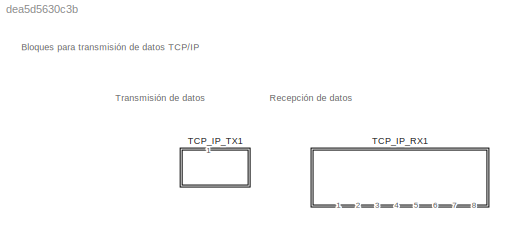
MODEL slx_dea5d5630c3b
KIND library
CONFIG AbsTol = auto
CONFIG EnableMultiTasking = off
CONFIG FixedStep = auto
CONFIG MaxStep = auto
CONFIG MinStep = auto
CONFIG RelTol = 1e-3
CONFIG SampleTimeConstraint = Unconstrained
CONFIG Solver = VariableStepAuto
CONFIG SolverName = VariableStepAuto
CONFIG StartTime = 0.0
CONFIG StopTime = 10.0
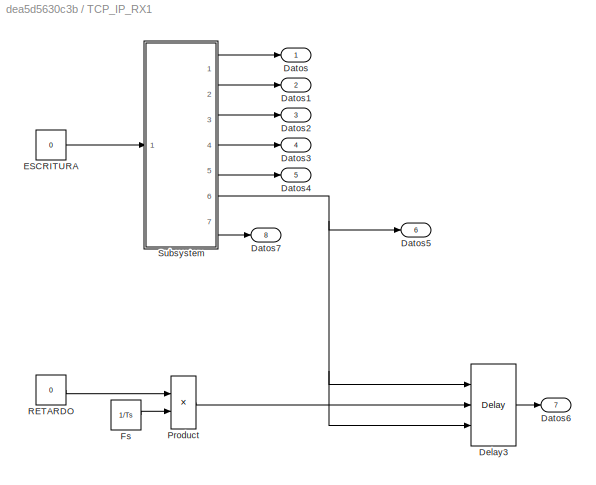
BLOCK [SubSystem] TCP_IP_RX1
  Ports = [0, 8]
  RequestExecContextInheritance = off
  ShowPortLabels = none
BLOCK [Outport] TCP_IP_RX1/Datos
  IconDisplay = Port number
BLOCK [Outport] TCP_IP_RX1/Datos1
  IconDisplay = Port number
  Port = 2
BLOCK [Outport] TCP_IP_RX1/Datos2
  IconDisplay = Port number
  Port = 3
BLOCK [Outport] TCP_IP_RX1/Datos3
  IconDisplay = Port number
  Port = 4
BLOCK [Outport] TCP_IP_RX1/Datos4
  IconDisplay = Port number
  Port = 5
BLOCK [Outport] TCP_IP_RX1/Datos5
  IconDisplay = Port number
  Port = 6
BLOCK [Outport] TCP_IP_RX1/Datos6
  IconDisplay = Port number
  Port = 7
BLOCK [Outport] TCP_IP_RX1/Datos7
  IconDisplay = Port number
  Port = 8
BLOCK [Delay] TCP_IP_RX1/Delay3
  DelayLength = 1
  DelayLengthSource = Input port
  DelayLengthUpperLimit = 1000
  InitialCondition = 0
  InitialConditionSource = Input port
  InputPortMap = u0,p1,p4
  InputProcessing = Inherited
  Ports = [3, 1]
BLOCK [Constant] TCP_IP_RX1/ESCRITURA
  Value = 0
BLOCK [Constant] TCP_IP_RX1/Fs
  Value = 1/Ts
BLOCK [Product] TCP_IP_RX1/Product
  InputSameDT = off
  OutDataTypeStr = Inherit: Inherit via internal rule
  Ports = [2, 1]
  RndMeth = Floor
  SaturateOnIntegerOverflow = off
BLOCK [Constant] TCP_IP_RX1/RETARDO
  Value = 0
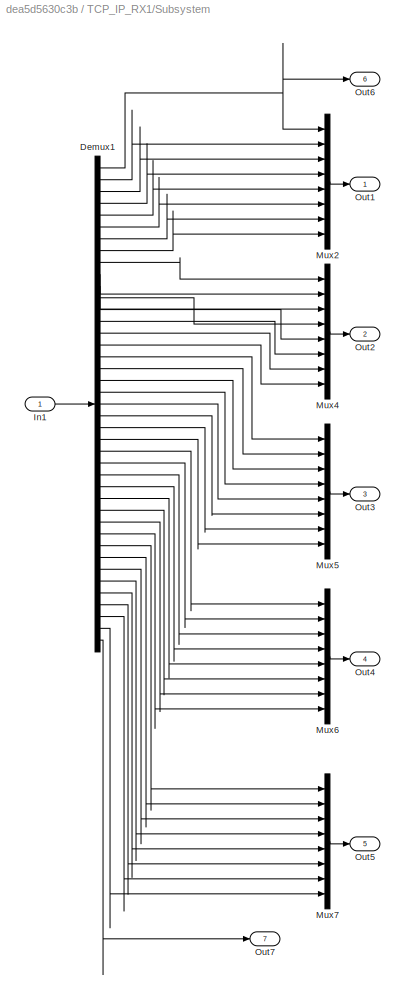
BLOCK [SubSystem] TCP_IP_RX1/Subsystem
  Ports = [1, 7]
  RequestExecContextInheritance = off
BLOCK [Demux] TCP_IP_RX1/Subsystem/Demux1
  DisplayOption = bar
  Outputs = 41
  Ports = [1, 41]
BLOCK [Inport] TCP_IP_RX1/Subsystem/In1
  IconDisplay = Port number
BLOCK [Mux] TCP_IP_RX1/Subsystem/Mux2
  DisplayOption = bar
  Inputs = 8
  Ports = [8, 1]
BLOCK [Mux] TCP_IP_RX1/Subsystem/Mux4
  DisplayOption = bar
  Inputs = 8
  Ports = [8, 1]
BLOCK [Mux] TCP_IP_RX1/Subsystem/Mux5
  DisplayOption = bar
  Inputs = 8
  Ports = [8, 1]
BLOCK [Mux] TCP_IP_RX1/Subsystem/Mux6
  DisplayOption = bar
  Inputs = 8
  Ports = [8, 1]
BLOCK [Mux] TCP_IP_RX1/Subsystem/Mux7
  DisplayOption = bar
  Inputs = 8
  Ports = [8, 1]
BLOCK [Outport] TCP_IP_RX1/Subsystem/Out1
  IconDisplay = Port number
BLOCK [Outport] TCP_IP_RX1/Subsystem/Out2
  IconDisplay = Port number
  Port = 2
BLOCK [Outport] TCP_IP_RX1/Subsystem/Out3
  IconDisplay = Port number
  Port = 3
BLOCK [Outport] TCP_IP_RX1/Subsystem/Out4
  IconDisplay = Port number
  Port = 4
BLOCK [Outport] TCP_IP_RX1/Subsystem/Out5
  IconDisplay = Port number
  Port = 5
BLOCK [Outport] TCP_IP_RX1/Subsystem/Out6
  IconDisplay = Port number
  Port = 6
BLOCK [Outport] TCP_IP_RX1/Subsystem/Out7
  IconDisplay = Port number
  Port = 7
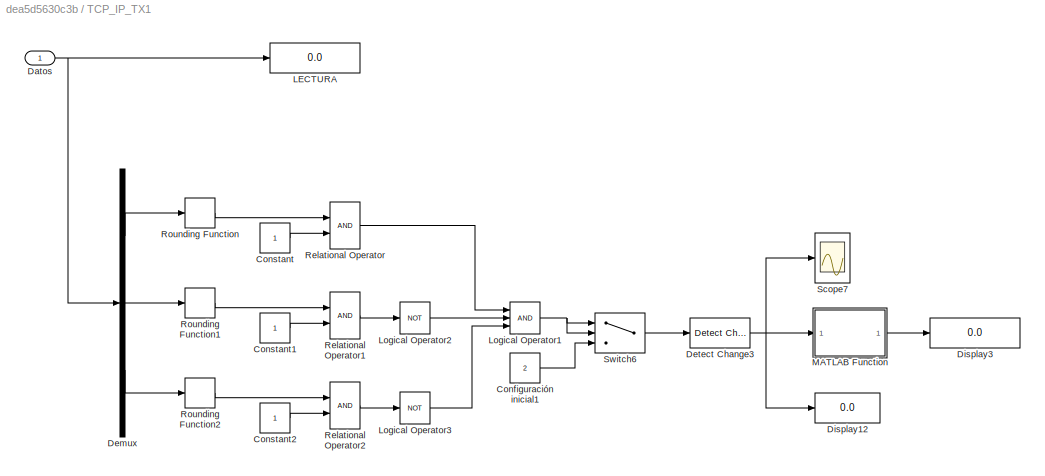
BLOCK [SubSystem] TCP_IP_TX1
  Ports = [1]
  RequestExecContextInheritance = off
  ShowPortLabels = none
BLOCK [Constant] TCP_IP_TX1/Configuración inicial1
  Value = 2
BLOCK [Constant] TCP_IP_TX1/Constant
BLOCK [Constant] TCP_IP_TX1/Constant1
BLOCK [Constant] TCP_IP_TX1/Constant2
BLOCK [Inport] TCP_IP_TX1/Datos
  IconDisplay = Port number
BLOCK [Demux] TCP_IP_TX1/Demux
  DisplayOption = bar
  Outputs = 3
  Ports = [1, 3]
BLOCK [Reference] TCP_IP_TX1/Detect Change3  REF=simulink/Logic and Bit
Operations/Detect
Change
  Ports = [1, 1]
  SourceBlock = simulink/Logic and Bit\nOperations/Detect\nChange
  SourceProductBaseCode = SL
  SourceProductName = Simulink
  SourceType = Detect Change
BLOCK [Display] TCP_IP_TX1/Display12
  Decimation = 1
  Ports = [1]
BLOCK [Display] TCP_IP_TX1/Display3
  Decimation = 1
  Ports = [1]
BLOCK [Display] TCP_IP_TX1/LECTURA
  Decimation = 1
  Ports = [1]
BLOCK [Logic] TCP_IP_TX1/Logical Operator1
  AllPortsSameDT = off
  Inputs = 3
  OutDataTypeStr = boolean
  Ports = [3, 1]
BLOCK [Logic] TCP_IP_TX1/Logical Operator2
  AllPortsSameDT = off
  Inputs = 3
  Operator = NOT
  OutDataTypeStr = boolean
  Ports = [1, 1]
BLOCK [Logic] TCP_IP_TX1/Logical Operator3
  AllPortsSameDT = off
  Inputs = 3
  Operator = NOT
  OutDataTypeStr = boolean
  Ports = [1, 1]
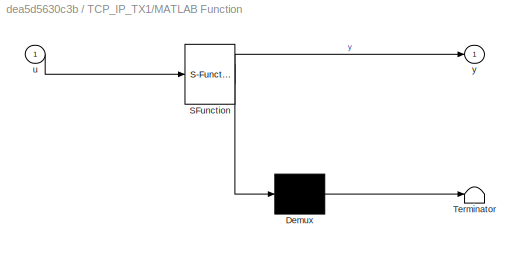
BLOCK [SubSystem] TCP_IP_TX1/MATLAB Function
  ErrorFcn = Stateflow.Translate.translate
  PermitHierarchicalResolution = ExplicitOnly
  Ports = [1, 1]
  RequestExecContextInheritance = off
  SFBlockType = MATLAB Function
  TreatAsAtomicUnit = on
BLOCK [Demux] TCP_IP_TX1/MATLAB Function/ Demux 
  Outputs = 1
  Ports = [1, 1]
BLOCK [S-Function] TCP_IP_TX1/MATLAB Function/ SFunction 
  EnableBusSupport = on
  FunctionName = sf_sfun
  PortCounts = [1 2]
  Ports = [1, 2]
  SFcnIsStateOwnerBlock = off
  SFunctionDeploymentMode = off
  Tag = Stateflow S-Function libreria_comunicaciones_cliente1 2
BLOCK [Terminator] TCP_IP_TX1/MATLAB Function/ Terminator 
BLOCK [Inport] TCP_IP_TX1/MATLAB Function/u
  IconDisplay = Port number
BLOCK [Outport] TCP_IP_TX1/MATLAB Function/y
  IconDisplay = Port number
BLOCK [RelationalOperator] TCP_IP_TX1/Relational Operator
  InputSameDT = off
  OutDataTypeStr = boolean
  Ports = [2, 1]
  RndMeth = Simplest
BLOCK [RelationalOperator] TCP_IP_TX1/Relational Operator1
  InputSameDT = off
  OutDataTypeStr = boolean
  Ports = [2, 1]
  RndMeth = Simplest
BLOCK [RelationalOperator] TCP_IP_TX1/Relational Operator2
  InputSameDT = off
  OutDataTypeStr = boolean
  Ports = [2, 1]
  RndMeth = Simplest
BLOCK [Rounding] TCP_IP_TX1/Rounding Function
  Operator = fix
BLOCK [Rounding] TCP_IP_TX1/Rounding Function1
  Operator = fix
BLOCK [Rounding] TCP_IP_TX1/Rounding Function2
  Operator = fix
BLOCK [Scope] TCP_IP_TX1/Scope7
  Floating = off
  NumInputPorts = 1
  Ports = [1]
  ScopeSpecificationString = Simulink.scopes.TimeScopeBlockCfg('CurrentConfiguration', extmgr.ConfigurationSet(extmgr.Configuration('Core','General UI',true,'FigureColor',[1 1 1]),extmgr.Configuration('Core','Source UI',true),extmgr.Configuration('Sources','WiredSimulink',true,'DataLoggingVariableName','ScopeData1','DataLoggingLimitDataPoints',true,'DataLoggingMaxPoints','15361','DataLoggingDecimation','1'),extmgr.Configurati...<+2168ch>
BLOCK [Switch] TCP_IP_TX1/Switch6
  Criteria = u2 ~= 0
  InputSameDT = off
  SaturateOnIntegerOverflow = off
ANNOTATION (root): Recepción de datos
ANNOTATION (root): Transmisión de datos
ANNOTATION (root): Bloques para transmisión de datos TCP/IP
LINE TCP_IP_RX1/Delay3:1 -> TCP_IP_RX1/Datos6:1
LINE TCP_IP_RX1/ESCRITURA:1 -> TCP_IP_RX1/Subsystem:1
LINE TCP_IP_RX1/Fs:1 -> TCP_IP_RX1/Product:2
LINE TCP_IP_RX1/Product:1 -> TCP_IP_RX1/Delay3:2
LINE TCP_IP_RX1/RETARDO:1 -> TCP_IP_RX1/Product:1
NET TCP_IP_RX1/Subsystem/Demux1:1 -> TCP_IP_RX1/Subsystem/Mux2:1, TCP_IP_RX1/Subsystem/Out6:1
LINE TCP_IP_RX1/Subsystem/Demux1:10 -> TCP_IP_RX1/Subsystem/Mux4:2
LINE TCP_IP_RX1/Subsystem/Demux1:11 -> TCP_IP_RX1/Subsystem/Mux4:3
LINE TCP_IP_RX1/Subsystem/Demux1:12 -> TCP_IP_RX1/Subsystem/Mux4:4
LINE TCP_IP_RX1/Subsystem/Demux1:13 -> TCP_IP_RX1/Subsystem/Mux4:5
LINE TCP_IP_RX1/Subsystem/Demux1:14 -> TCP_IP_RX1/Subsystem/Mux4:6
LINE TCP_IP_RX1/Subsystem/Demux1:15 -> TCP_IP_RX1/Subsystem/Mux4:7
LINE TCP_IP_RX1/Subsystem/Demux1:16 -> TCP_IP_RX1/Subsystem/Mux4:8
LINE TCP_IP_RX1/Subsystem/Demux1:17 -> TCP_IP_RX1/Subsystem/Mux5:1
LINE TCP_IP_RX1/Subsystem/Demux1:18 -> TCP_IP_RX1/Subsystem/Mux5:2
LINE TCP_IP_RX1/Subsystem/Demux1:19 -> TCP_IP_RX1/Subsystem/Mux5:3
LINE TCP_IP_RX1/Subsystem/Demux1:2 -> TCP_IP_RX1/Subsystem/Mux2:2
LINE TCP_IP_RX1/Subsystem/Demux1:20 -> TCP_IP_RX1/Subsystem/Mux5:4
LINE TCP_IP_RX1/Subsystem/Demux1:21 -> TCP_IP_RX1/Subsystem/Mux5:5
LINE TCP_IP_RX1/Subsystem/Demux1:22 -> TCP_IP_RX1/Subsystem/Mux5:6
LINE TCP_IP_RX1/Subsystem/Demux1:23 -> TCP_IP_RX1/Subsystem/Mux5:7
LINE TCP_IP_RX1/Subsystem/Demux1:24 -> TCP_IP_RX1/Subsystem/Mux5:8
LINE TCP_IP_RX1/Subsystem/Demux1:25 -> TCP_IP_RX1/Subsystem/Mux6:1
LINE TCP_IP_RX1/Subsystem/Demux1:26 -> TCP_IP_RX1/Subsystem/Mux6:2
LINE TCP_IP_RX1/Subsystem/Demux1:27 -> TCP_IP_RX1/Subsystem/Mux6:3
LINE TCP_IP_RX1/Subsystem/Demux1:28 -> TCP_IP_RX1/Subsystem/Mux6:4
LINE TCP_IP_RX1/Subsystem/Demux1:29 -> TCP_IP_RX1/Subsystem/Mux6:5
LINE TCP_IP_RX1/Subsystem/Demux1:3 -> TCP_IP_RX1/Subsystem/Mux2:3
LINE TCP_IP_RX1/Subsystem/Demux1:30 -> TCP_IP_RX1/Subsystem/Mux6:6
LINE TCP_IP_RX1/Subsystem/Demux1:31 -> TCP_IP_RX1/Subsystem/Mux6:7
LINE TCP_IP_RX1/Subsystem/Demux1:32 -> TCP_IP_RX1/Subsystem/Mux6:8
LINE TCP_IP_RX1/Subsystem/Demux1:33 -> TCP_IP_RX1/Subsystem/Mux7:1
LINE TCP_IP_RX1/Subsystem/Demux1:34 -> TCP_IP_RX1/Subsystem/Mux7:2
LINE TCP_IP_RX1/Subsystem/Demux1:35 -> TCP_IP_RX1/Subsystem/Mux7:3
LINE TCP_IP_RX1/Subsystem/Demux1:36 -> TCP_IP_RX1/Subsystem/Mux7:4
LINE TCP_IP_RX1/Subsystem/Demux1:37 -> TCP_IP_RX1/Subsystem/Mux7:5
LINE TCP_IP_RX1/Subsystem/Demux1:38 -> TCP_IP_RX1/Subsystem/Mux7:6
LINE TCP_IP_RX1/Subsystem/Demux1:39 -> TCP_IP_RX1/Subsystem/Mux7:7
LINE TCP_IP_RX1/Subsystem/Demux1:4 -> TCP_IP_RX1/Subsystem/Mux2:4
LINE TCP_IP_RX1/Subsystem/Demux1:40 -> TCP_IP_RX1/Subsystem/Mux7:8
LINE TCP_IP_RX1/Subsystem/Demux1:41 -> TCP_IP_RX1/Subsystem/Out7:1
LINE TCP_IP_RX1/Subsystem/Demux1:5 -> TCP_IP_RX1/Subsystem/Mux2:5
LINE TCP_IP_RX1/Subsystem/Demux1:6 -> TCP_IP_RX1/Subsystem/Mux2:6
LINE TCP_IP_RX1/Subsystem/Demux1:7 -> TCP_IP_RX1/Subsystem/Mux2:7
LINE TCP_IP_RX1/Subsystem/Demux1:8 -> TCP_IP_RX1/Subsystem/Mux2:8
LINE TCP_IP_RX1/Subsystem/Demux1:9 -> TCP_IP_RX1/Subsystem/Mux4:1
LINE TCP_IP_RX1/Subsystem/In1:1 -> TCP_IP_RX1/Subsystem/Demux1:1
LINE TCP_IP_RX1/Subsystem/Mux2:1 -> TCP_IP_RX1/Subsystem/Out1:1
LINE TCP_IP_RX1/Subsystem/Mux4:1 -> TCP_IP_RX1/Subsystem/Out2:1
LINE TCP_IP_RX1/Subsystem/Mux5:1 -> TCP_IP_RX1/Subsystem/Out3:1
LINE TCP_IP_RX1/Subsystem/Mux6:1 -> TCP_IP_RX1/Subsystem/Out4:1
LINE TCP_IP_RX1/Subsystem/Mux7:1 -> TCP_IP_RX1/Subsystem/Out5:1
LINE TCP_IP_RX1/Subsystem:1 -> TCP_IP_RX1/Datos:1
LINE TCP_IP_RX1/Subsystem:2 -> TCP_IP_RX1/Datos1:1
LINE TCP_IP_RX1/Subsystem:3 -> TCP_IP_RX1/Datos2:1
LINE TCP_IP_RX1/Subsystem:4 -> TCP_IP_RX1/Datos3:1
LINE TCP_IP_RX1/Subsystem:5 -> TCP_IP_RX1/Datos4:1
NET TCP_IP_RX1/Subsystem:6 -> TCP_IP_RX1/Datos5:1, TCP_IP_RX1/Delay3:1, TCP_IP_RX1/Delay3:3
LINE TCP_IP_RX1/Subsystem:7 -> TCP_IP_RX1/Datos7:1
LINE TCP_IP_TX1/Configuración inicial1:1 -> TCP_IP_TX1/Switch6:3
LINE TCP_IP_TX1/Constant1:1 -> TCP_IP_TX1/Relational Operator1:2
LINE TCP_IP_TX1/Constant2:1 -> TCP_IP_TX1/Relational Operator2:2
LINE TCP_IP_TX1/Constant:1 -> TCP_IP_TX1/Relational Operator:2
NET TCP_IP_TX1/Datos:1 -> TCP_IP_TX1/Demux:1, TCP_IP_TX1/LECTURA:1
LINE TCP_IP_TX1/Demux:1 -> TCP_IP_TX1/Rounding Function:1
LINE TCP_IP_TX1/Demux:2 -> TCP_IP_TX1/Rounding Function1:1
LINE TCP_IP_TX1/Demux:3 -> TCP_IP_TX1/Rounding Function2:1
NET TCP_IP_TX1/Detect Change3:1 -> TCP_IP_TX1/Display12:1, TCP_IP_TX1/MATLAB Function:1, TCP_IP_TX1/Scope7:1
NET TCP_IP_TX1/Logical Operator1:1 -> TCP_IP_TX1/Switch6:1, TCP_IP_TX1/Switch6:2
LINE TCP_IP_TX1/Logical Operator2:1 -> TCP_IP_TX1/Logical Operator1:2
LINE TCP_IP_TX1/Logical Operator3:1 -> TCP_IP_TX1/Logical Operator1:3
LINE TCP_IP_TX1/MATLAB Function:1 -> TCP_IP_TX1/Display3:1
LINE TCP_IP_TX1/Relational Operator1:1 -> TCP_IP_TX1/Logical Operator2:1
LINE TCP_IP_TX1/Relational Operator2:1 -> TCP_IP_TX1/Logical Operator3:1
LINE TCP_IP_TX1/Relational Operator:1 -> TCP_IP_TX1/Logical Operator1:1
LINE TCP_IP_TX1/Rounding Function1:1 -> TCP_IP_TX1/Relational Operator1:1
LINE TCP_IP_TX1/Rounding Function2:1 -> TCP_IP_TX1/Relational Operator2:1
LINE TCP_IP_TX1/Rounding Function:1 -> TCP_IP_TX1/Relational Operator:1
LINE TCP_IP_TX1/Switch6:1 -> TCP_IP_TX1/Detect Change3:1
note: NET lines group one-source signal fan-out (src -> all destinations, sorted); 1:1 wires keep LINE
CHART TCP_IP_TX1/MATLAB Function states=1 transitions=1
  STATE_LABEL 'eML_blk_kernel()'
  STATE_LABEL "SCRIPT:\n%Esta función envía y recibos los datos\n%desde el CCL a través del script_ciclo_vs.m\nfunction y = fcn(u)\n    coder.extrinsic('run')\n    if u==1\n        run script_ciclo_vs1.m\n        y=1;\n    else\n        y=0;\n    end\nend\n"
